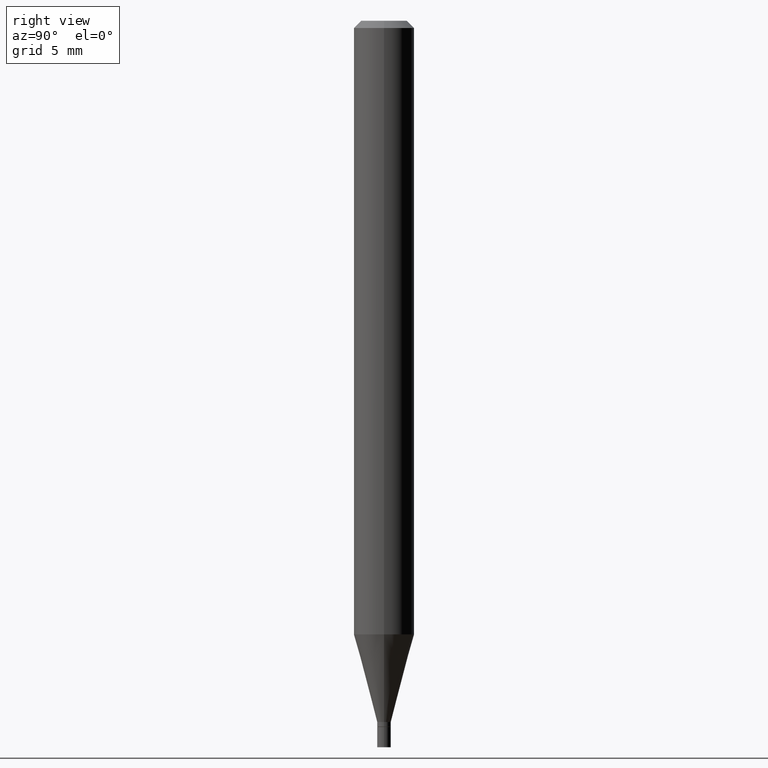
[diagram: clean part render]
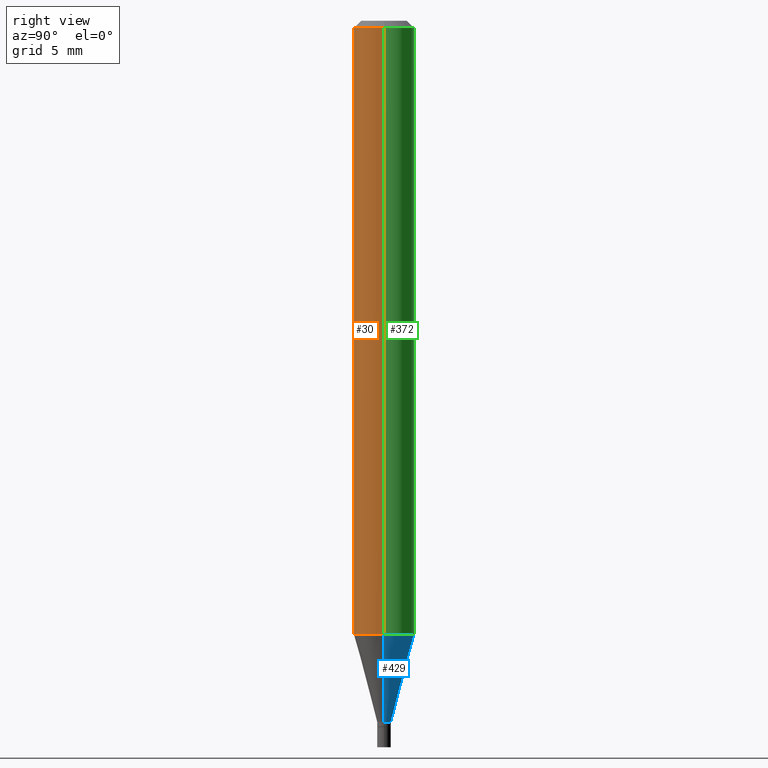
[diagram: same view with three faces highlighted in distinct colors, each labeled with its STEP entity id]
A machine part, right view with three faces highlighted in distinct colors.
Their STEP definitions:

[orange] entity #30 — the highlighted cylindrical surface (edge-blend (fillet) strip) has radius 1.5875 mm, axis along (-0, 0, 1).
#20 = CARTESIAN_POINT ( 'NONE',  ( 0.06249999999999999306, -4.860126437113567612E-15, -1.266995535832909692 ) ) ;
#22 = DIRECTION ( 'NONE',  ( 1.000000000000000000, -6.982962677686262766E-15, 0.000000000000000000 ) ) ;
#23 = EDGE_CURVE ( 'NONE', #336, #422, #333, .T. ) ;
#26 = AXIS2_PLACEMENT_3D ( 'NONE', #346, #280, #22 ) ;
#30 = ADVANCED_FACE ( 'NONE', ( #167 ), #448, .T. ) ;
#32 = EDGE_LOOP ( 'NONE', ( #173, #61, #444, #265 ) ) ;
#36 = EDGE_CURVE ( 'NONE', #87, #307, #390, .T. ) ;
#52 = AXIS2_PLACEMENT_3D ( 'NONE', #420, #102, #418 ) ;
#57 = DIRECTION ( 'NONE',  ( -2.445468806185136597E-29, 3.491481338843145583E-15, 1.000000000000000000 ) ) ;
#60 = DIRECTION ( 'NONE',  ( -2.445468806185136877E-29, 3.491481338843145188E-15, 1.000000000000000000 ) ) ;
#61 = ORIENTED_EDGE ( 'NONE', *, *, #36, .T. ) ;
#87 = VERTEX_POINT ( 'NONE', #437 ) ;
#99 = CARTESIAN_POINT ( 'NONE',  ( 0.000000000000000000, 0.000000000000000000, 0.000000000000000000 ) ) ;
#102 = DIRECTION ( 'NONE',  ( -2.445468806185136597E-29, 3.491481338843145583E-15, 1.000000000000000000 ) ) ;
#136 = DIRECTION ( 'NONE',  ( 1.000000000000000000, -6.982962677686266711E-15, 4.876176775795935793E-29 ) ) ;
#142 = LINE ( 'NONE', #145, #391 ) ;
#145 = CARTESIAN_POINT ( 'NONE',  ( -0.06250000000000000000, 4.440892098500626162E-16, -3.074334431409316114E-30 ) ) ;
#167 = FACE_OUTER_BOUND ( 'NONE', #32, .T. ) ;
#173 = ORIENTED_EDGE ( 'NONE', *, *, #194, .F. ) ;
#175 = CARTESIAN_POINT ( 'NONE',  ( 0.06250000000000000000, -4.364351673553916694E-16, 3.047610484872459871E-30 ) ) ;
#194 = EDGE_CURVE ( 'NONE', #87, #336, #142, .T. ) ;
#207 = DIRECTION ( 'NONE',  ( -2.445468806185136877E-29, 3.491481338843145188E-15, 1.000000000000000000 ) ) ;
#241 = AXIS2_PLACEMENT_3D ( 'NONE', #99, #57, #136 ) ;
#261 = CARTESIAN_POINT ( 'NONE',  ( 0.06250000000000000000, -4.888073874380388472E-16, -0.01499999999999999944 ) ) ;
#265 = ORIENTED_EDGE ( 'NONE', *, *, #23, .F. ) ;
#280 = DIRECTION ( 'NONE',  ( -2.445468806185136597E-29, 3.491481338843145583E-15, 1.000000000000000000 ) ) ;
#307 = VERTEX_POINT ( 'NONE', #20 ) ;
#329 = EDGE_CURVE ( 'NONE', #307, #422, #347, .T. ) ;
#333 = CIRCLE ( 'NONE', #52, 0.06250000000000000000 ) ;
#336 = VERTEX_POINT ( 'NONE', #455 ) ;
#344 = VECTOR ( 'NONE', #60, 39.37007874015748143 ) ;
#346 = CARTESIAN_POINT ( 'NONE',  ( 3.098398060455203506E-29, -4.423691269758176732E-15, -1.266995535832909692 ) ) ;
#347 = LINE ( 'NONE', #175, #344 ) ;
#390 = CIRCLE ( 'NONE', #26, 0.06250000000000000000 ) ;
#391 = VECTOR ( 'NONE', #207, 39.37007874015748143 ) ;
#418 = DIRECTION ( 'NONE',  ( 1.000000000000000000, -6.982962677686266711E-15, 0.000000000000000000 ) ) ;
#420 = CARTESIAN_POINT ( 'NONE',  ( 3.668203209277705088E-31, -5.237222008264718399E-17, -0.01499999999999999944 ) ) ;
#422 = VERTEX_POINT ( 'NONE', #261 ) ;
#437 = CARTESIAN_POINT ( 'NONE',  ( -0.06249999999999999306, -3.979602059908114116E-15, -1.266995535832909692 ) ) ;
#444 = ORIENTED_EDGE ( 'NONE', *, *, #329, .T. ) ;
#448 = CYLINDRICAL_SURFACE ( 'NONE', #241, 0.06250000000000000000 ) ;
#455 = CARTESIAN_POINT ( 'NONE',  ( -0.06250000000000000000, -1.793942535070349092E-15, -0.01499999999999999944 ) ) ;

[blue] entity #429 — the highlighted conical surface has half-angle 15 deg.
#11 = EDGE_CURVE ( 'NONE', #307, #87, #177, .T. ) ;
#20 = CARTESIAN_POINT ( 'NONE',  ( 0.06249999999999999306, -4.860126437113567612E-15, -1.266995535832909692 ) ) ;
#29 = CONICAL_SURFACE ( 'NONE', #206, 0.01399999999999992049, 0.2617993877991498519 ) ;
#38 = DIRECTION ( 'NONE',  ( -2.445468806185136597E-29, 3.491481338843145583E-15, 1.000000000000000000 ) ) ;
#40 = CARTESIAN_POINT ( 'NONE',  ( 0.01399999999999992049, -5.153426456132482850E-15, -1.448000000000000176 ) ) ;
#56 = LINE ( 'NONE', #212, #446 ) ;
#59 = ORIENTED_EDGE ( 'NONE', *, *, #11, .F. ) ;
#75 = LINE ( 'NONE', #40, #424 ) ;
#80 = VERTEX_POINT ( 'NONE', #118 ) ;
#87 = VERTEX_POINT ( 'NONE', #437 ) ;
#98 = CARTESIAN_POINT ( 'NONE',  ( -0.01399999999999992049, -4.467895527773287748E-15, -1.448000000000000176 ) ) ;
#108 = FACE_OUTER_BOUND ( 'NONE', #251, .T. ) ;
#118 = CARTESIAN_POINT ( 'NONE',  ( 0.01399999999999992049, -5.153426456132482850E-15, -1.448000000000000176 ) ) ;
#149 = CARTESIAN_POINT ( 'NONE',  ( 3.541038831356078205E-29, -5.055664978644875495E-15, -1.448000000000000176 ) ) ;
#152 = CARTESIAN_POINT ( 'NONE',  ( 3.541038831356078205E-29, -5.055664978644875495E-15, -1.448000000000000176 ) ) ;
#158 = VERTEX_POINT ( 'NONE', #98 ) ;
#177 = CIRCLE ( 'NONE', #432, 0.06250000000000000000 ) ;
#182 = DIRECTION ( 'NONE',  ( -2.445468806185136597E-29, 3.491481338843145583E-15, 1.000000000000000000 ) ) ;
#206 = AXIS2_PLACEMENT_3D ( 'NONE', #152, #38, #427 ) ;
#212 = CARTESIAN_POINT ( 'NONE',  ( -0.01399999999999992049, -4.956188995638462169E-15, -1.448000000000000176 ) ) ;
#251 = EDGE_LOOP ( 'NONE', ( #433, #400, #59, #340 ) ) ;
#296 = EDGE_CURVE ( 'NONE', #158, #87, #56, .T. ) ;
#306 = AXIS2_PLACEMENT_3D ( 'NONE', #149, #439, #395 ) ;
#307 = VERTEX_POINT ( 'NONE', #20 ) ;
#317 = DIRECTION ( 'NONE',  ( -0.2588190451025211281, 5.211531920934547886E-15, 0.9659258262890679791 ) ) ;
#331 = DIRECTION ( 'NONE',  ( 0.2588190451025211281, 1.565188264969622954E-15, 0.9659258262890679791 ) ) ;
#340 = ORIENTED_EDGE ( 'NONE', *, *, #349, .F. ) ;
#349 = EDGE_CURVE ( 'NONE', #80, #307, #75, .T. ) ;
#362 = CIRCLE ( 'NONE', #306, 0.01399999999999992049 ) ;
#380 = DIRECTION ( 'NONE',  ( 1.000000000000000000, -6.982962677686262766E-15, 0.000000000000000000 ) ) ;
#385 = EDGE_CURVE ( 'NONE', #80, #158, #362, .T. ) ;
#393 = CARTESIAN_POINT ( 'NONE',  ( 3.098398060455203506E-29, -4.423691269758176732E-15, -1.266995535832909692 ) ) ;
#395 = DIRECTION ( 'NONE',  ( 1.000000000000000000, -6.982962677686233578E-15, 0.000000000000000000 ) ) ;
#400 = ORIENTED_EDGE ( 'NONE', *, *, #296, .T. ) ;
#424 = VECTOR ( 'NONE', #331, 39.37007874015748854 ) ;
#427 = DIRECTION ( 'NONE',  ( 1.000000000000000000, -6.982962677686233578E-15, 0.000000000000000000 ) ) ;
#429 = ADVANCED_FACE ( 'NONE', ( #108 ), #29, .T. ) ;
#432 = AXIS2_PLACEMENT_3D ( 'NONE', #393, #182, #380 ) ;
#433 = ORIENTED_EDGE ( 'NONE', *, *, #385, .T. ) ;
#437 = CARTESIAN_POINT ( 'NONE',  ( -0.06249999999999999306, -3.979602059908114116E-15, -1.266995535832909692 ) ) ;
#439 = DIRECTION ( 'NONE',  ( -2.445468806185136597E-29, 3.491481338843145583E-15, 1.000000000000000000 ) ) ;
#446 = VECTOR ( 'NONE', #317, 39.37007874015748854 ) ;

[green] entity #372 — the highlighted cylindrical surface (edge-blend (fillet) strip) has radius 1.5875 mm, axis along (-0, 0, 1).
#10 = DIRECTION ( 'NONE',  ( 1.000000000000000000, -6.982962677686266711E-15, 4.876176775795935793E-29 ) ) ;
#11 = EDGE_CURVE ( 'NONE', #307, #87, #177, .T. ) ;
#20 = CARTESIAN_POINT ( 'NONE',  ( 0.06249999999999999306, -4.860126437113567612E-15, -1.266995535832909692 ) ) ;
#60 = DIRECTION ( 'NONE',  ( -2.445468806185136877E-29, 3.491481338843145188E-15, 1.000000000000000000 ) ) ;
#84 = ORIENTED_EDGE ( 'NONE', *, *, #194, .T. ) ;
#87 = VERTEX_POINT ( 'NONE', #437 ) ;
#101 = DIRECTION ( 'NONE',  ( 1.000000000000000000, -6.982962677686266711E-15, 0.000000000000000000 ) ) ;
#138 = AXIS2_PLACEMENT_3D ( 'NONE', #267, #430, #10 ) ;
#142 = LINE ( 'NONE', #145, #391 ) ;
#145 = CARTESIAN_POINT ( 'NONE',  ( -0.06250000000000000000, 4.440892098500626162E-16, -3.074334431409316114E-30 ) ) ;
#157 = AXIS2_PLACEMENT_3D ( 'NONE', #388, #315, #101 ) ;
#170 = CIRCLE ( 'NONE', #157, 0.06250000000000000000 ) ;
#175 = CARTESIAN_POINT ( 'NONE',  ( 0.06250000000000000000, -4.364351673553916694E-16, 3.047610484872459871E-30 ) ) ;
#177 = CIRCLE ( 'NONE', #432, 0.06250000000000000000 ) ;
#182 = DIRECTION ( 'NONE',  ( -2.445468806185136597E-29, 3.491481338843145583E-15, 1.000000000000000000 ) ) ;
#193 = EDGE_LOOP ( 'NONE', ( #298, #84, #232, #351 ) ) ;
#194 = EDGE_CURVE ( 'NONE', #87, #336, #142, .T. ) ;
#207 = DIRECTION ( 'NONE',  ( -2.445468806185136877E-29, 3.491481338843145188E-15, 1.000000000000000000 ) ) ;
#222 = CYLINDRICAL_SURFACE ( 'NONE', #138, 0.06250000000000000000 ) ;
#232 = ORIENTED_EDGE ( 'NONE', *, *, #275, .F. ) ;
#261 = CARTESIAN_POINT ( 'NONE',  ( 0.06250000000000000000, -4.888073874380388472E-16, -0.01499999999999999944 ) ) ;
#267 = CARTESIAN_POINT ( 'NONE',  ( 0.000000000000000000, 0.000000000000000000, 0.000000000000000000 ) ) ;
#275 = EDGE_CURVE ( 'NONE', #422, #336, #170, .T. ) ;
#298 = ORIENTED_EDGE ( 'NONE', *, *, #11, .T. ) ;
#307 = VERTEX_POINT ( 'NONE', #20 ) ;
#315 = DIRECTION ( 'NONE',  ( -2.445468806185136597E-29, 3.491481338843145583E-15, 1.000000000000000000 ) ) ;
#329 = EDGE_CURVE ( 'NONE', #307, #422, #347, .T. ) ;
#336 = VERTEX_POINT ( 'NONE', #455 ) ;
#344 = VECTOR ( 'NONE', #60, 39.37007874015748143 ) ;
#347 = LINE ( 'NONE', #175, #344 ) ;
#351 = ORIENTED_EDGE ( 'NONE', *, *, #329, .F. ) ;
#372 = ADVANCED_FACE ( 'NONE', ( #465 ), #222, .T. ) ;
#380 = DIRECTION ( 'NONE',  ( 1.000000000000000000, -6.982962677686262766E-15, 0.000000000000000000 ) ) ;
#388 = CARTESIAN_POINT ( 'NONE',  ( 3.668203209277705088E-31, -5.237222008264718399E-17, -0.01499999999999999944 ) ) ;
#391 = VECTOR ( 'NONE', #207, 39.37007874015748143 ) ;
#393 = CARTESIAN_POINT ( 'NONE',  ( 3.098398060455203506E-29, -4.423691269758176732E-15, -1.266995535832909692 ) ) ;
#422 = VERTEX_POINT ( 'NONE', #261 ) ;
#430 = DIRECTION ( 'NONE',  ( -2.445468806185136597E-29, 3.491481338843145583E-15, 1.000000000000000000 ) ) ;
#432 = AXIS2_PLACEMENT_3D ( 'NONE', #393, #182, #380 ) ;
#437 = CARTESIAN_POINT ( 'NONE',  ( -0.06249999999999999306, -3.979602059908114116E-15, -1.266995535832909692 ) ) ;
#455 = CARTESIAN_POINT ( 'NONE',  ( -0.06250000000000000000, -1.793942535070349092E-15, -0.01499999999999999944 ) ) ;
#465 = FACE_OUTER_BOUND ( 'NONE', #193, .T. ) ;